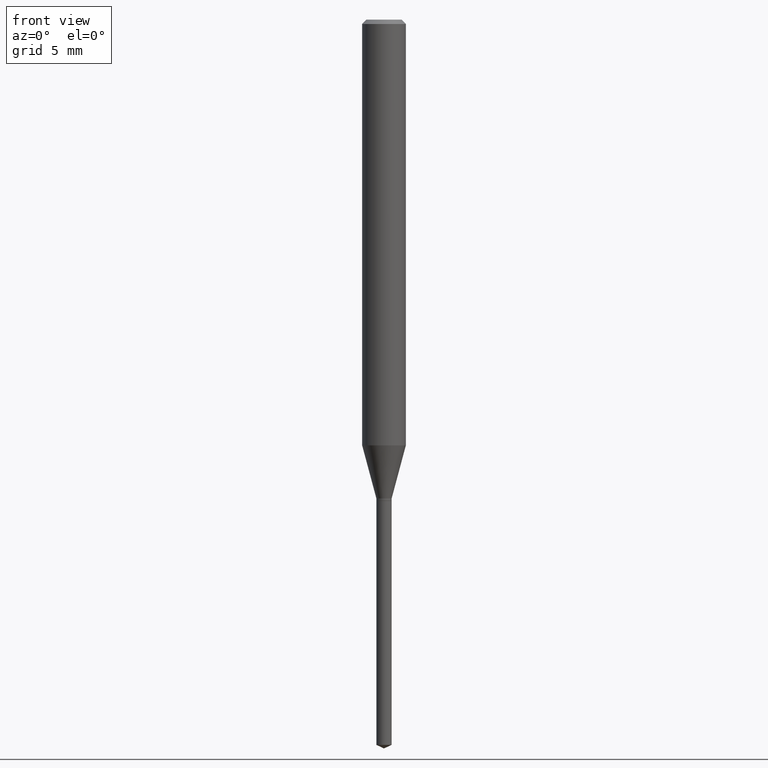
[diagram: clean part render]
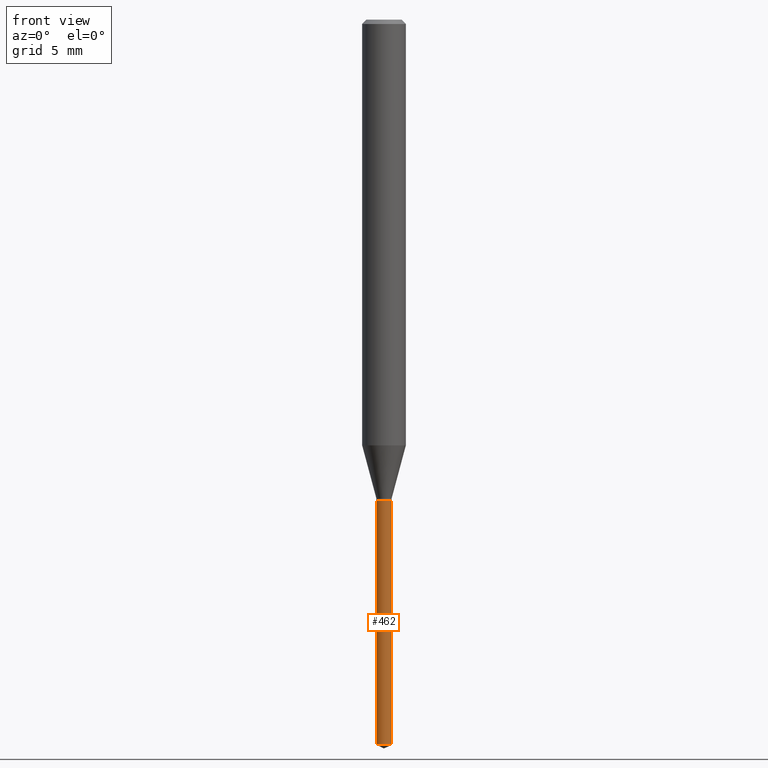
[diagram: same view with one face highlighted and labeled with its STEP entity id]
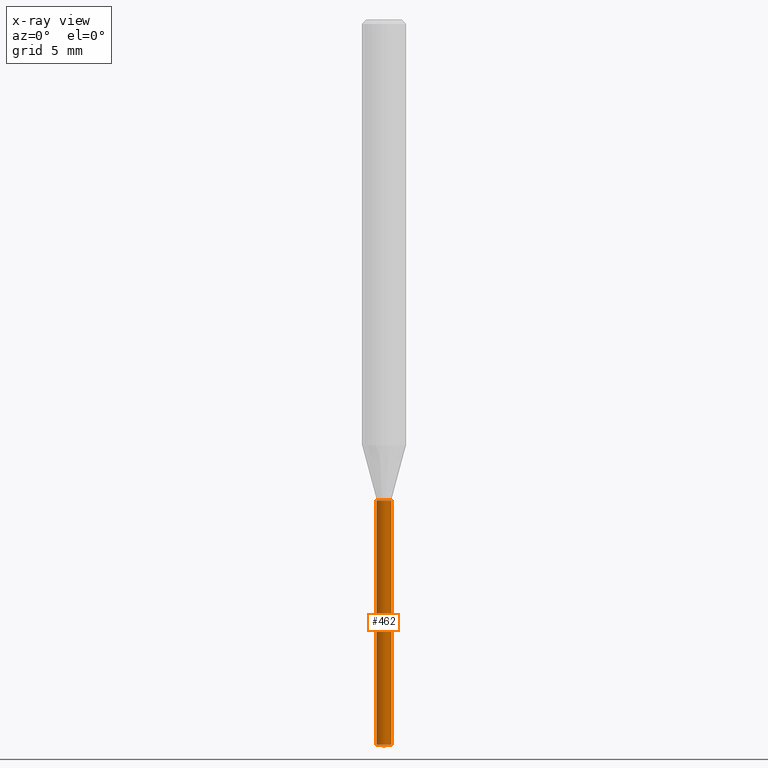
[diagram: x-ray of the same camera — body ghosted, the highlighted face saturated]
A machine part, front view. The second image highlights one B-rep face of the part: STEP entity #462.
The next image is the same camera in x-ray: the body ghosted, the highlighted face saturated — about 0% of this face is hidden behind the body in this view.
In plain terms, the highlighted cylindrical surface (edge-blend (fillet) strip) has radius 0.5245 mm, axis along (-0, 0, 1).
Its self-contained STEP definition (entity closure, byte-faithful):
#3 = CARTESIAN_POINT ( 'NONE',  ( 4.791580041195601474E-29, -6.841106398533702726E-15, -1.959370746859099510 ) ) ;
#20 = VERTEX_POINT ( 'NONE', #437 ) ;
#26 = ORIENTED_EDGE ( 'NONE', *, *, #165, .T. ) ;
#45 = DIRECTION ( 'NONE',  ( -2.445468806185136597E-29, 3.491481338843145583E-15, 1.000000000000000000 ) ) ;
#47 = CARTESIAN_POINT ( 'NONE',  ( 0.02065000000000000169, -4.682076475388656376E-15, -1.299699999999999855 ) ) ;
#48 = VERTEX_POINT ( 'NONE', #319 ) ;
#50 = VERTEX_POINT ( 'NONE', #155 ) ;
#59 = CYLINDRICAL_SURFACE ( 'NONE', #272, 0.02065000000000000169 ) ;
#79 = DIRECTION ( 'NONE',  ( 1.000000000000000000, -6.982962677686264344E-15, 0.000000000000000000 ) ) ;
#89 = DIRECTION ( 'NONE',  ( -2.445468806185136877E-29, 3.491481338843145188E-15, 1.000000000000000000 ) ) ;
#117 = EDGE_CURVE ( 'NONE', #326, #48, #443, .T. ) ;
#132 = LINE ( 'NONE', #379, #349 ) ;
#148 = ORIENTED_EDGE ( 'NONE', *, *, #290, .F. ) ;
#155 = CARTESIAN_POINT ( 'NONE',  ( 0.02065000000000000863, -6.985304577827923654E-15, -1.959370746859099510 ) ) ;
#165 = EDGE_CURVE ( 'NONE', #50, #48, #242, .T. ) ;
#209 = ORIENTED_EDGE ( 'NONE', *, *, #117, .F. ) ;
#230 = AXIS2_PLACEMENT_3D ( 'NONE', #278, #45, #419 ) ;
#233 = EDGE_CURVE ( 'NONE', #20, #50, #459, .T. ) ;
#238 = DIRECTION ( 'NONE',  ( -2.445468806185136597E-29, 3.491481338843145583E-15, 1.000000000000000000 ) ) ;
#240 = ORIENTED_EDGE ( 'NONE', *, *, #233, .T. ) ;
#242 = LINE ( 'NONE', #47, #341 ) ;
#272 = AXIS2_PLACEMENT_3D ( 'NONE', #484, #366, #364 ) ;
#278 = CARTESIAN_POINT ( 'NONE',  ( 3.178375807398821559E-29, -4.537878296094435448E-15, -1.299699999999999855 ) ) ;
#287 = CARTESIAN_POINT ( 'NONE',  ( -0.02065000000000000169, -5.542765272379608387E-15, -1.299699999999999855 ) ) ;
#290 = EDGE_CURVE ( 'NONE', #20, #326, #132, .T. ) ;
#292 = FACE_OUTER_BOUND ( 'NONE', #451, .T. ) ;
#310 = AXIS2_PLACEMENT_3D ( 'NONE', #3, #238, #79 ) ;
#319 = CARTESIAN_POINT ( 'NONE',  ( 0.02065000000000000169, -4.682076475388656376E-15, -1.299699999999999855 ) ) ;
#326 = VERTEX_POINT ( 'NONE', #287 ) ;
#341 = VECTOR ( 'NONE', #346, 39.37007874015748143 ) ;
#346 = DIRECTION ( 'NONE',  ( -2.445468806185136877E-29, 3.491481338843145188E-15, 1.000000000000000000 ) ) ;
#349 = VECTOR ( 'NONE', #89, 39.37007874015748143 ) ;
#364 = DIRECTION ( 'NONE',  ( 1.000000000000000000, -6.982962677686264344E-15, 0.000000000000000000 ) ) ;
#366 = DIRECTION ( 'NONE',  ( -2.445468806185136597E-29, 3.491481338843145583E-15, 1.000000000000000000 ) ) ;
#379 = CARTESIAN_POINT ( 'NONE',  ( -0.02065000000000000169, -4.391151221159975142E-15, -1.299699999999999855 ) ) ;
#419 = DIRECTION ( 'NONE',  ( 1.000000000000000000, -6.982962677686264344E-15, 0.000000000000000000 ) ) ;
#437 = CARTESIAN_POINT ( 'NONE',  ( -0.02065000000000000863, -6.694379323599242420E-15, -1.959370746859099510 ) ) ;
#443 = CIRCLE ( 'NONE', #230, 0.02065000000000000169 ) ;
#451 = EDGE_LOOP ( 'NONE', ( #148, #240, #26, #209 ) ) ;
#459 = CIRCLE ( 'NONE', #310, 0.02065000000000000169 ) ;
#462 = ADVANCED_FACE ( 'NONE', ( #292 ), #59, .T. ) ;
#484 = CARTESIAN_POINT ( 'NONE',  ( 3.178375807398821559E-29, -4.537878296094435448E-15, -1.299699999999999855 ) ) ;